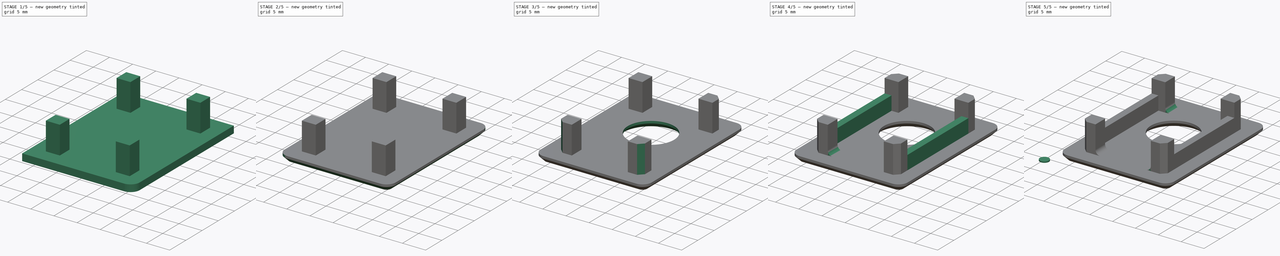
[diagram: build sequence overview — one tinted view per stage of 5, left to right]
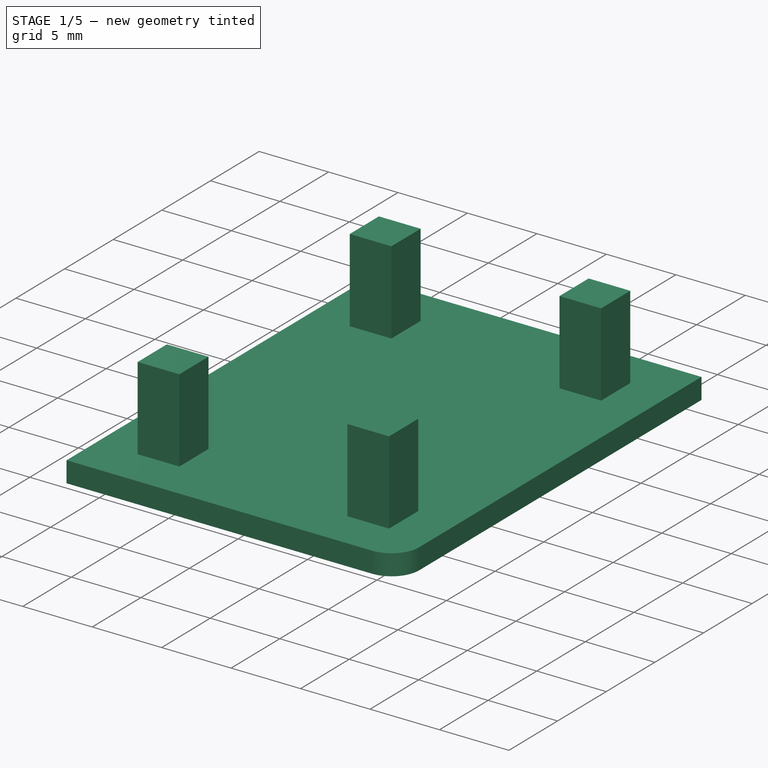
[diagram: stage 1 of 5 — iso view after this stage's code; geometry added in this stage tinted green]
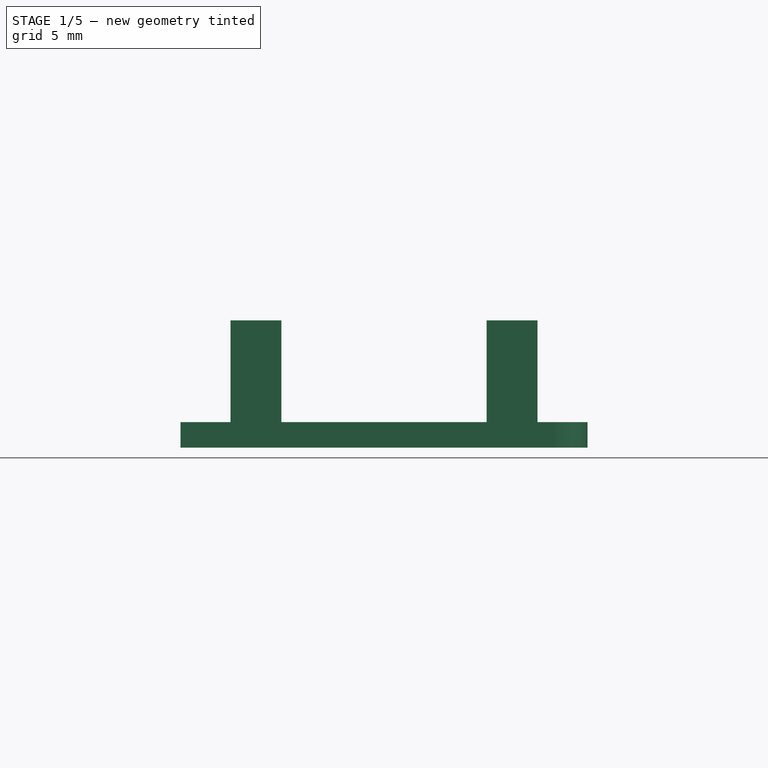
[diagram: stage 1 of 5 — front view after this stage's code; geometry added in this stage tinted green]
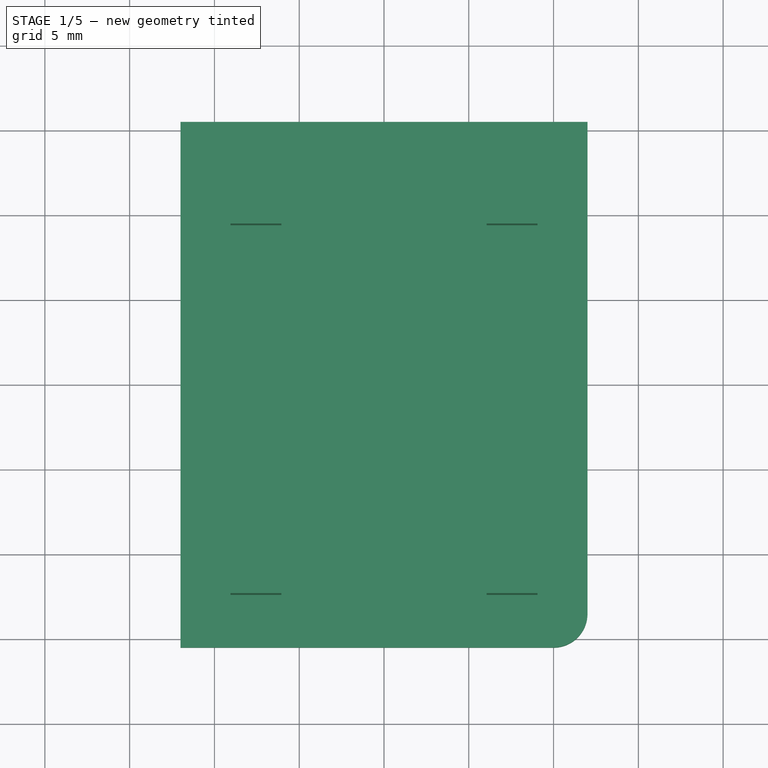
[diagram: stage 1 of 5 — top view after this stage's code; geometry added in this stage tinted green]
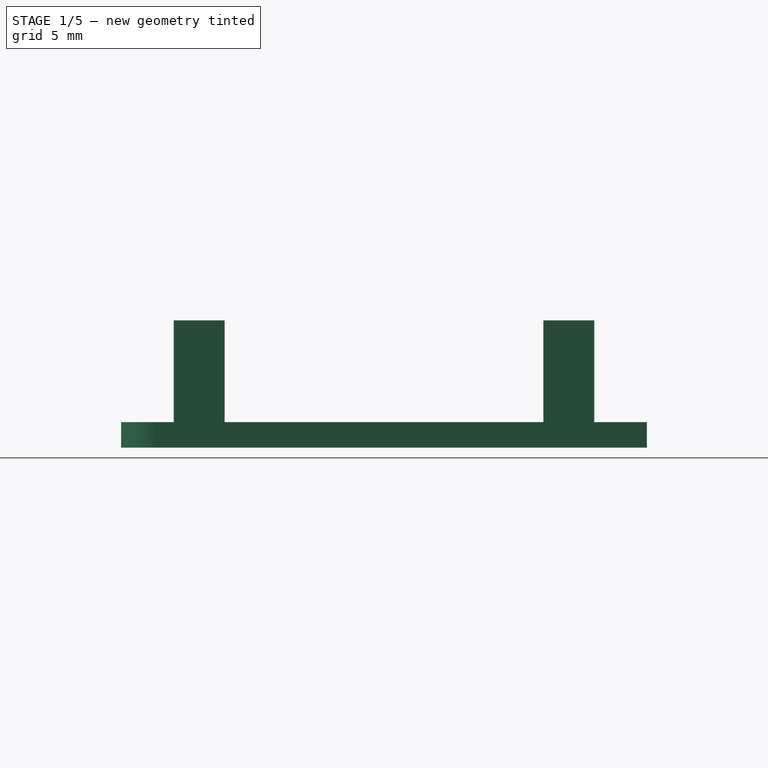
[diagram: stage 1 of 5 — right view after this stage's code; geometry added in this stage tinted green]
FCSTD DOCUMENT  (FreeCAD 0.14R2935 (Git))
Label: ttstrobe_top
License: CC-BY 3.0
LicenseURL: http://creativecommons.org/licenses/by/3.0/
objects: PartDesign::Fillet×8, PartDesign::Chamfer×6, Sketcher::SketchObject×5, PartDesign::Pad×4, PartDesign::Mirrored×3, PartDesign::MultiTransform×1, PartDesign::Pocket×1
note: 33 computed .brp shape members not serialized (recipe doc carries the construction recipe); baked Part::Feature solids carry a one-line shape summary decoded from their .brp

FEATURE [Sketcher::SketchObject] Sketch
  sketch-geometry (6):
    g0: LineSegment StartX=-12 StartY=15.5 StartZ=0 EndX=12 EndY=15.5 EndZ=0
    g1: LineSegment StartX=12 StartY=15.5 StartZ=0 EndX=12 EndY=-15.5 EndZ=0
    g2: LineSegment StartX=12 StartY=-15.5 StartZ=0 EndX=-12 EndY=-15.5 EndZ=0
    g3: LineSegment StartX=-12 StartY=-15.5 StartZ=0 EndX=-12 EndY=15.5 EndZ=0
    g4: LineSegment [constr] StartX=-12 StartY=15.5 StartZ=0 EndX=12 EndY=-15.5 EndZ=0
    g5: LineSegment [constr] StartX=12 StartY=15.5 StartZ=0 EndX=-12 EndY=-15.5 EndZ=0
  constraints (16):
    c: Coincident(g0,g1)
    c: Coincident(g1,g2)
    c: Coincident(g2,g3)
    c: Coincident(g3,g0)
    c: Horizontal(g0)
    c: Horizontal(g2)
    c: Vertical(g1)
    c: Vertical(g3)
    c: Coincident(g4,g0)
    c: Coincident(g4,g1)
    c: Coincident(g5,g0)
    c: Coincident(g5,g2)
    c: PointOnObject(g-1,g4)
    c: PointOnObject(g-1,g5)
    c: DistanceX(g0) = 24
    c: DistanceY(g1) = -31
FEATURE [PartDesign::Pad] Pad
  Length = 1.5
  Length2 = 100
  Sketch = -> Sketch
  Type = 0
FEATURE [Sketcher::SketchObject] Sketch002
  Placement = pos=(0,0,1.5) rot=(0,0,1;0rad)
  Support = -> Pad [Face6]
  sketch-geometry (4):
    g0: LineSegment StartX=-9.05 StartY=12.4 StartZ=0 EndX=-6.05 EndY=12.4 EndZ=0
    g1: LineSegment StartX=-6.05 StartY=9.4 StartZ=0 EndX=-9.05 EndY=9.4 EndZ=0
    g2: LineSegment StartX=-9.05 StartY=12.4 StartZ=0 EndX=-9.05 EndY=9.4 EndZ=0
    g3: LineSegment StartX=-6.05 StartY=12.4 StartZ=0 EndX=-6.05 EndY=9.4 EndZ=0
  constraints (12):
    c: Horizontal(g0)
    c: Horizontal(g1)
    c: Coincident(g2,g0)
    c: Coincident(g3,g0)
    c: Vertical(g2)
    c: Vertical(g3)
    c: Equal(g1,g2)
    c: Coincident(g1,g2)
    c: DistanceX(g-1,g1) = -9.05
    c: DistanceY(g-1,g0) = 12.4
    c: DistanceX(g0) = 3
    c: Coincident(g1,g3)
FEATURE [PartDesign::Pad] Pad001
  Length = 6
  Length2 = 100
  Sketch = -> Sketch002
  Type = 0
FEATURE [PartDesign::Mirrored] Mirrored
  MirrorPlane = -> Sketch002 [V_Axis]
FEATURE [PartDesign::Mirrored] Mirrored001
  MirrorPlane = -> Sketch002 [H_Axis]
FEATURE [PartDesign::MultiTransform] MultiTransform
  Originals = -> [Pad001]
  Transformations = -> [Mirrored,Mirrored001]
FEATURE [PartDesign::Fillet] Fillet
  Base = -> MultiTransform [Edge8]
  Radius = 2
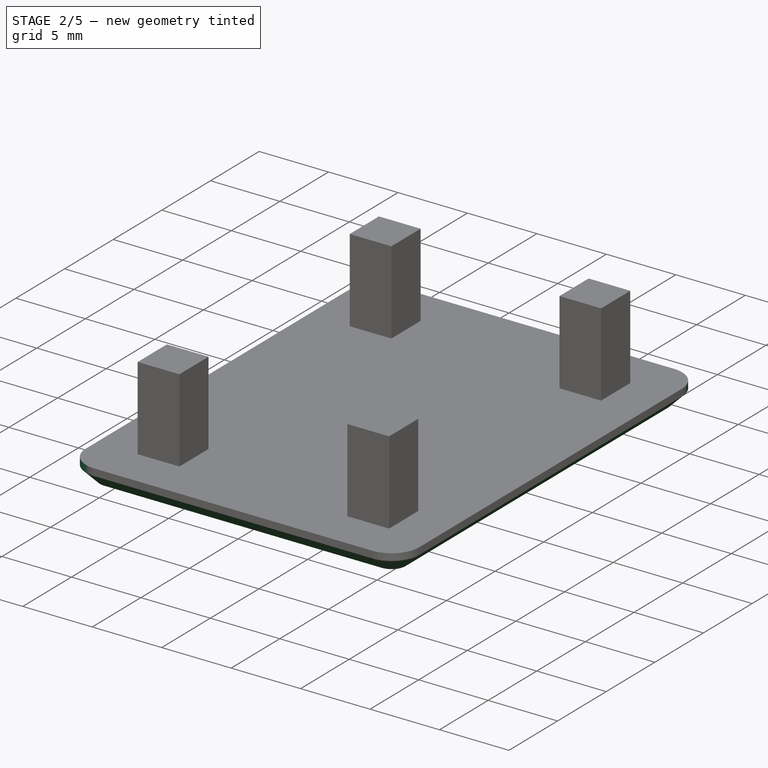
[diagram: stage 2 of 5 — iso view after this stage's code; geometry added in this stage tinted green]
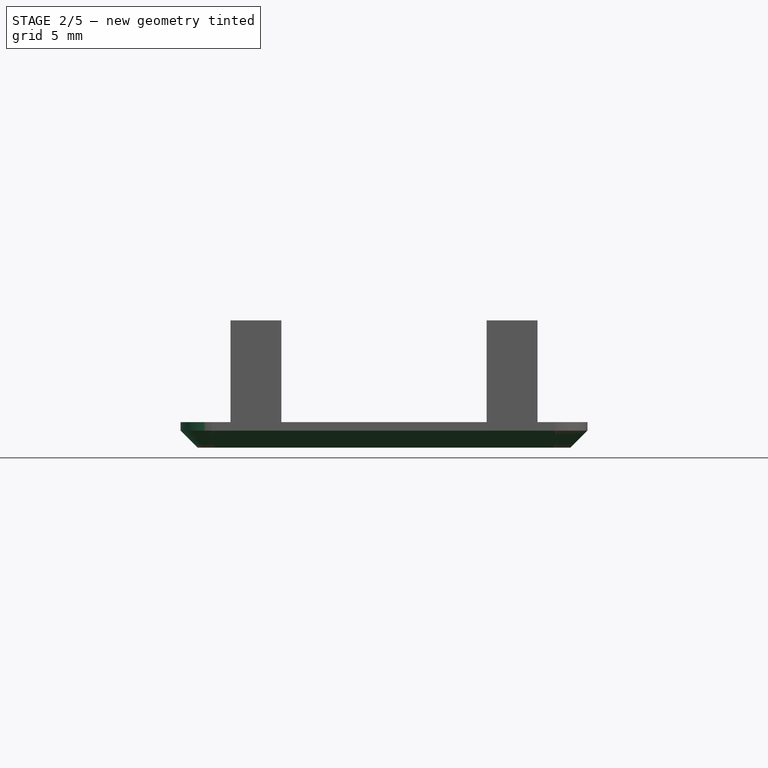
[diagram: stage 2 of 5 — front view after this stage's code; geometry added in this stage tinted green]
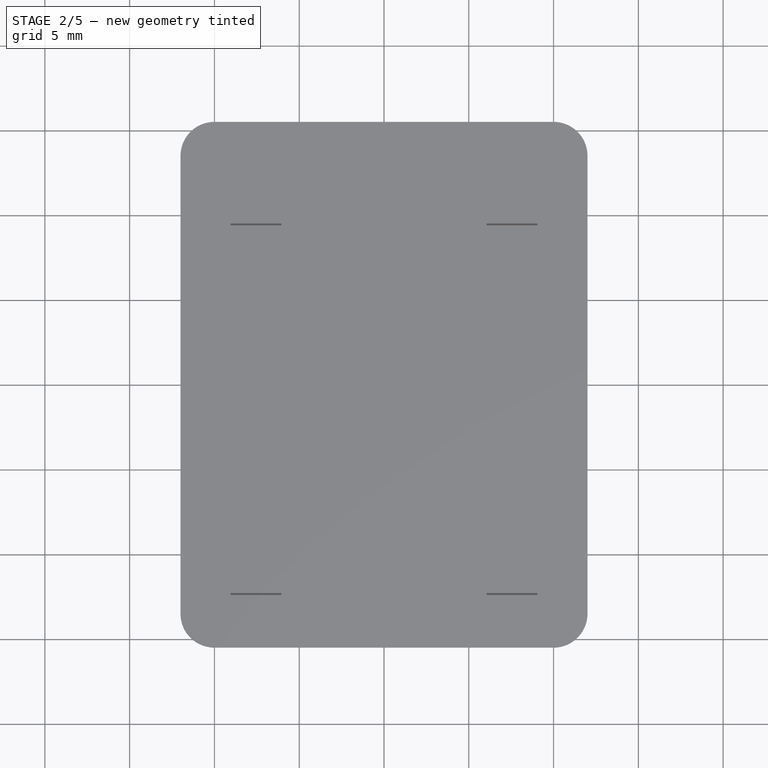
[diagram: stage 2 of 5 — top view after this stage's code; geometry added in this stage tinted green]
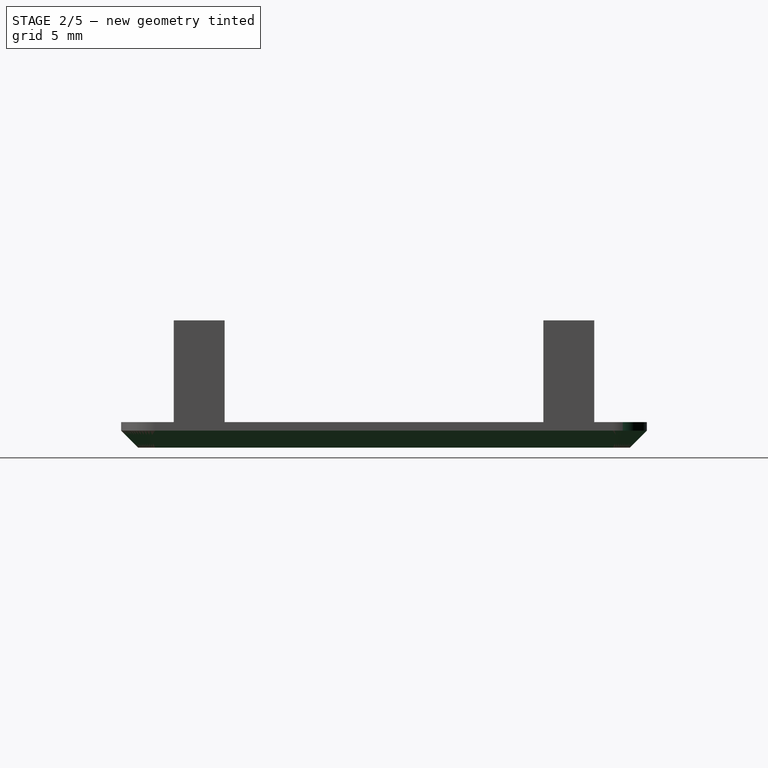
[diagram: stage 2 of 5 — right view after this stage's code; geometry added in this stage tinted green]
FEATURE [PartDesign::Fillet] Fillet001
  Base = -> Fillet [Edge31]
  Radius = 2
FEATURE [PartDesign::Fillet] Fillet002
  Base = -> Fillet001 [Edge16]
  Radius = 2
FEATURE [PartDesign::Fillet] Fillet003
  Base = -> Fillet002 [Edge15]
  Radius = 2
FEATURE [PartDesign::Chamfer] Chamfer
  Base = -> Fillet003 [Edge5]
  Size = 1
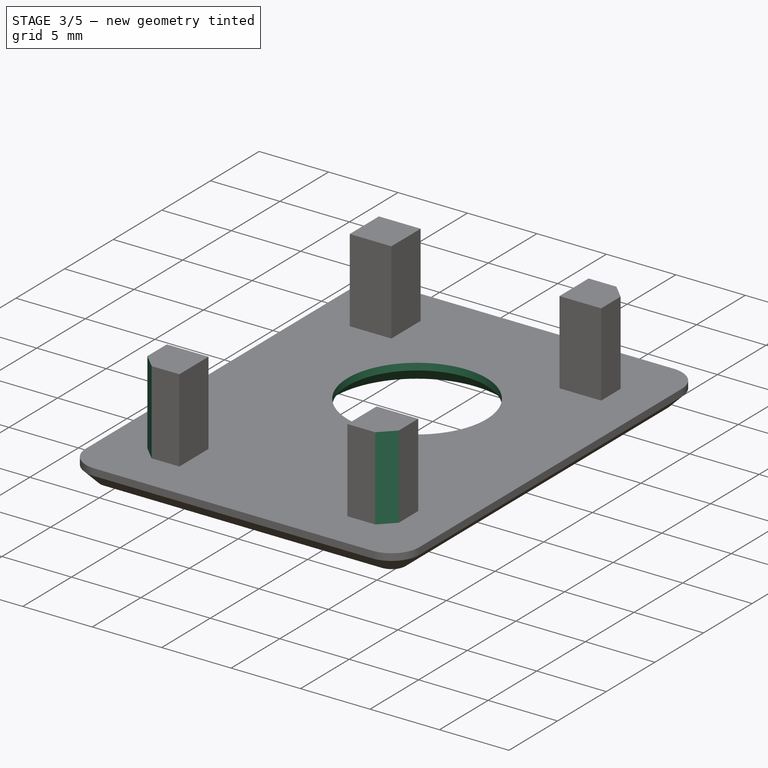
[diagram: stage 3 of 5 — iso view after this stage's code; geometry added in this stage tinted green]
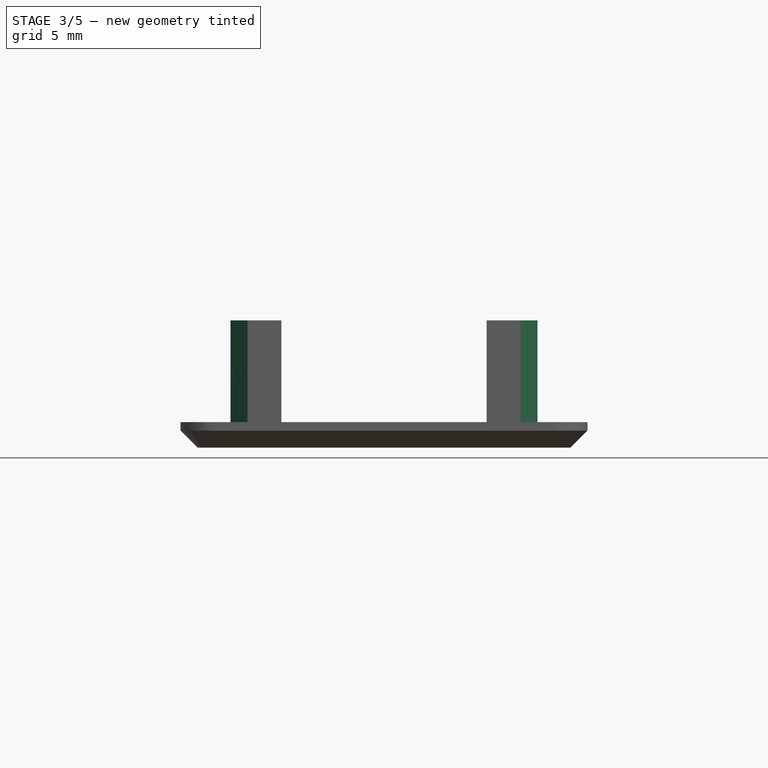
[diagram: stage 3 of 5 — front view after this stage's code; geometry added in this stage tinted green]
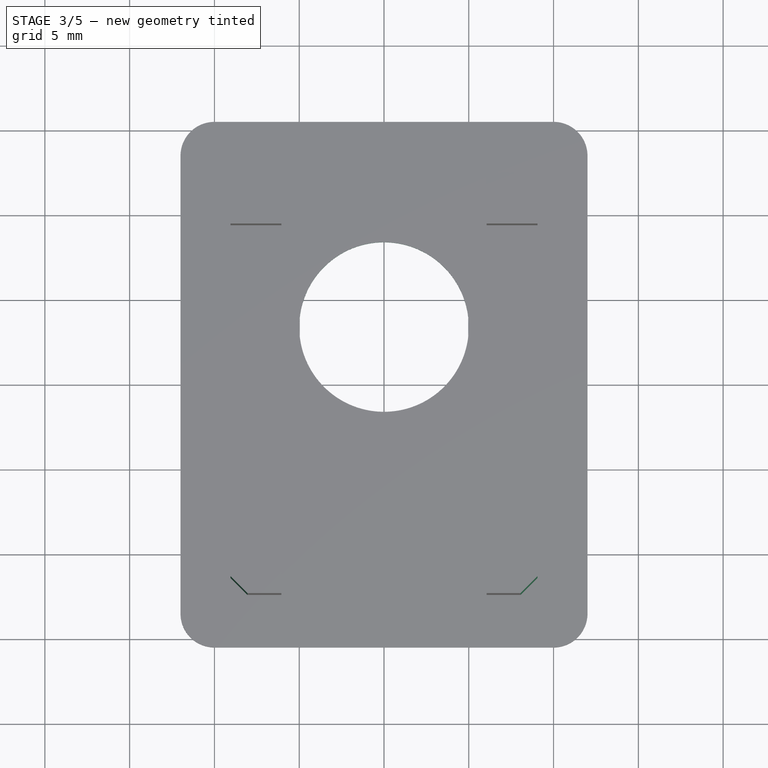
[diagram: stage 3 of 5 — top view after this stage's code; geometry added in this stage tinted green]
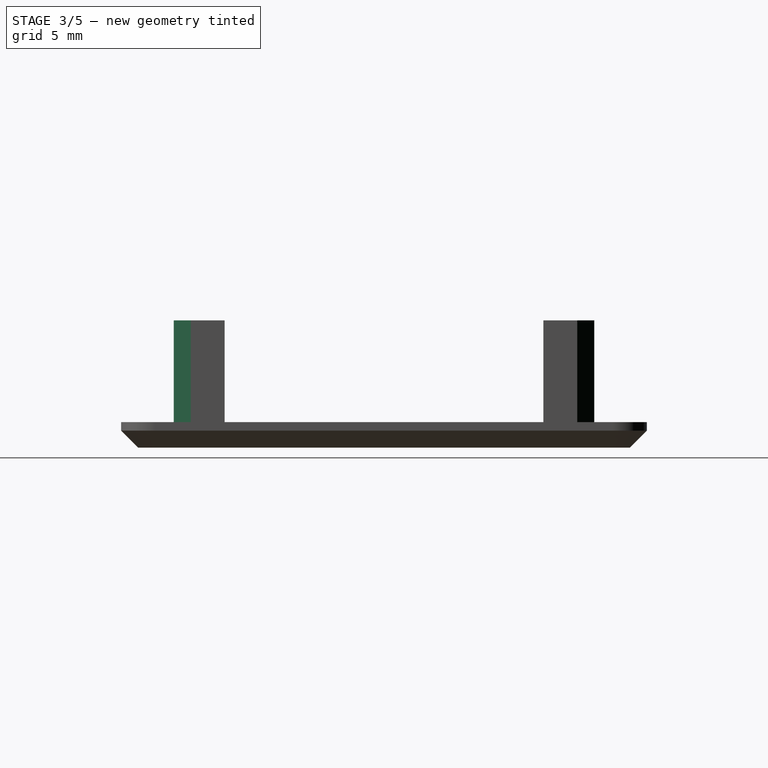
[diagram: stage 3 of 5 — right view after this stage's code; geometry added in this stage tinted green]
FEATURE [Sketcher::SketchObject] Sketch004
  ExternalGeometry = -> [Chamfer]
  Placement = pos=(0,0,1.5) rot=(0,0,1;0rad)
  Support = -> Chamfer [Face18]
  sketch-geometry (1):
    g0: Circle CenterX=0 CenterY=3.4 CenterZ=0 NormalX=0 NormalY=0 NormalZ=1 Radius=5
  constraints (3):
    c: PointOnObject(g0,g-2)
    c: Radius(g0) = 5
    c: DistanceY(g-3,g0) = -9
FEATURE [PartDesign::Pocket] Pocket
  Length = 5
  Sketch = -> Sketch004
  Type = 1
FEATURE [PartDesign::Chamfer] Chamfer001
  Base = -> Pocket [Edge9]
  Size = 1
FEATURE [PartDesign::Chamfer] Chamfer002
  Base = -> Chamfer001 [Edge78]
  Size = 1
FEATURE [PartDesign::Chamfer] Chamfer003
  Base = -> Chamfer002 [Edge66]
  Size = 1
FEATURE [PartDesign::Chamfer] Chamfer004
  Base = -> Chamfer003 [Edge72]
  Size = 1
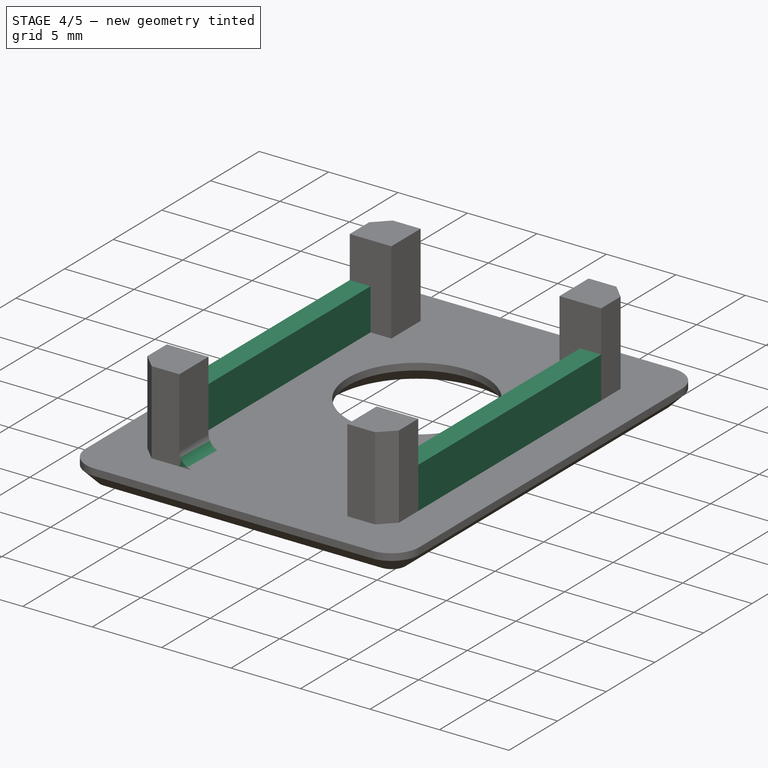
[diagram: stage 4 of 5 — iso view after this stage's code; geometry added in this stage tinted green]
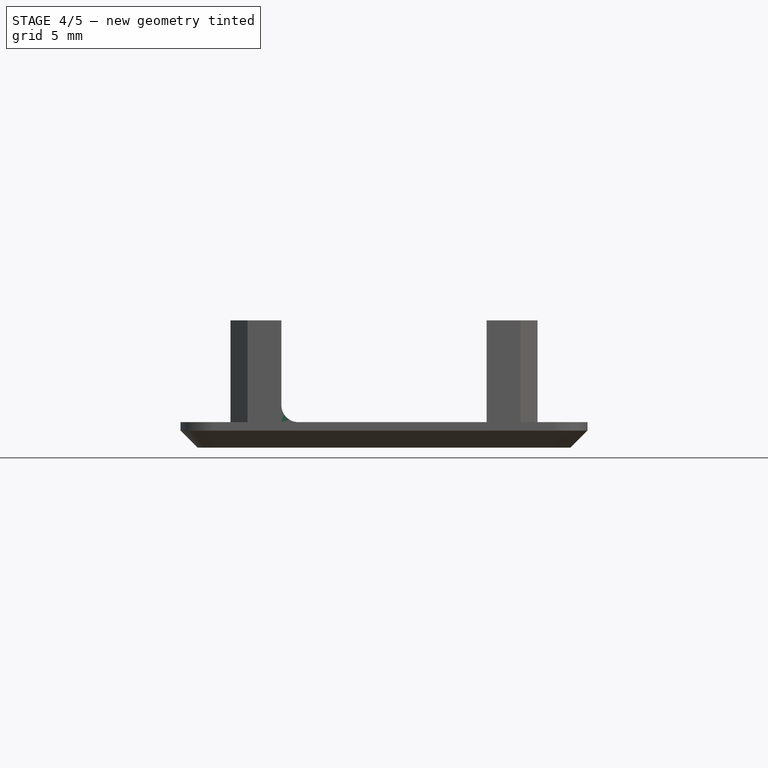
[diagram: stage 4 of 5 — front view after this stage's code; geometry added in this stage tinted green]
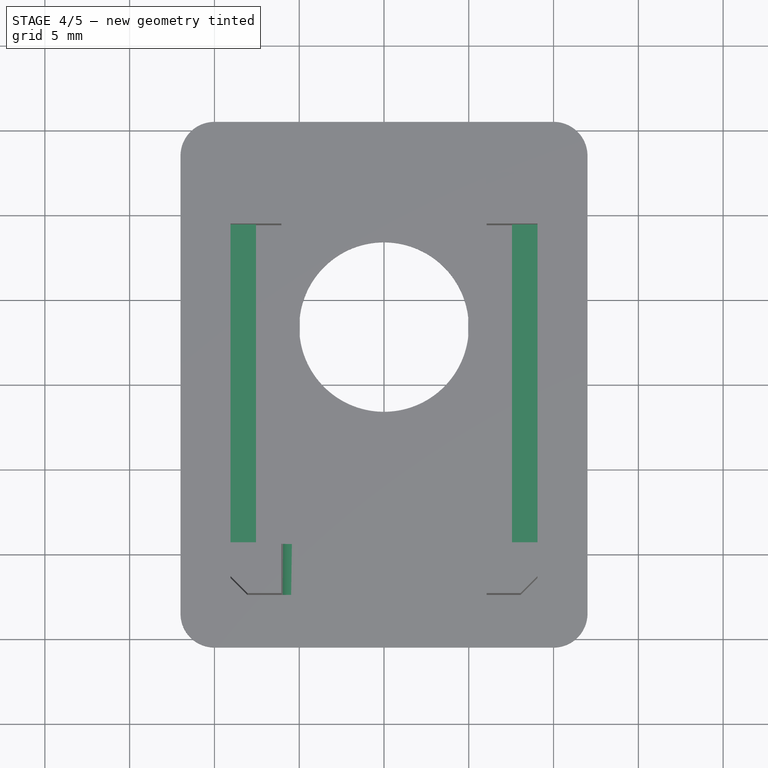
[diagram: stage 4 of 5 — top view after this stage's code; geometry added in this stage tinted green]
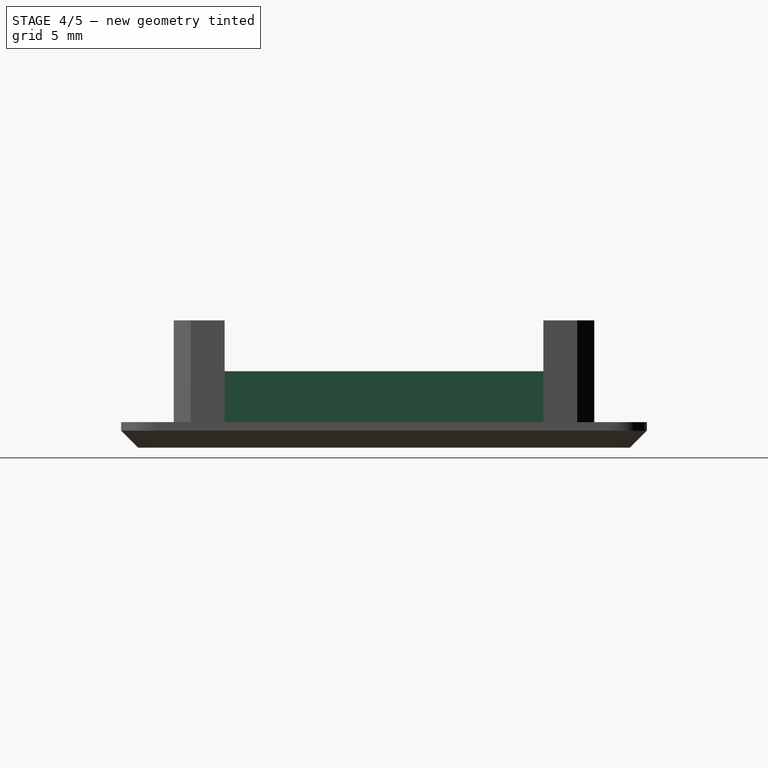
[diagram: stage 4 of 5 — right view after this stage's code; geometry added in this stage tinted green]
FEATURE [PartDesign::Chamfer] Chamfer005
  Base = -> Chamfer004 [Edge75]
  Size = 1
FEATURE [Sketcher::SketchObject] Sketch005
  ExternalGeometry = -> [Chamfer005]
  Placement = pos=(0,9.4,0) rot=(1,0,0;1.5708rad)
  Support = -> Chamfer005 [Face6]
  sketch-geometry (4):
    g0: LineSegment StartX=-9.05 StartY=1.5 StartZ=0 EndX=-7.55 EndY=1.5 EndZ=0
    g1: LineSegment StartX=-7.55 StartY=1.5 StartZ=0 EndX=-7.55 EndY=4.5 EndZ=0
    g2: LineSegment StartX=-7.55 StartY=4.5 StartZ=0 EndX=-9.05 EndY=4.5 EndZ=0
    g3: LineSegment StartX=-9.05 StartY=4.5 StartZ=0 EndX=-9.05 EndY=1.5 EndZ=0
  constraints (11):
    c: Coincident(g0,g1)
    c: Coincident(g1,g2)
    c: Coincident(g2,g3)
    c: Coincident(g3,g0)
    c: Horizontal(g0)
    c: Horizontal(g2)
    c: Vertical(g1)
    c: Vertical(g3)
    c: Coincident(g0,g-3)
    c: DistanceX(g2) = -1.5
    c: DistanceY(g1) = 3
FEATURE [PartDesign::Pad] Pad003
  Length = 10
  Length2 = 100
  Sketch = -> Sketch005
  Type = 2
FEATURE [PartDesign::Mirrored] Mirrored002
  MirrorPlane = -> Sketch005 [V_Axis]
  Originals = -> [Pad003]
FEATURE [PartDesign::Fillet] Fillet004
  Base = -> Mirrored002 [Edge28]
  Radius = 1
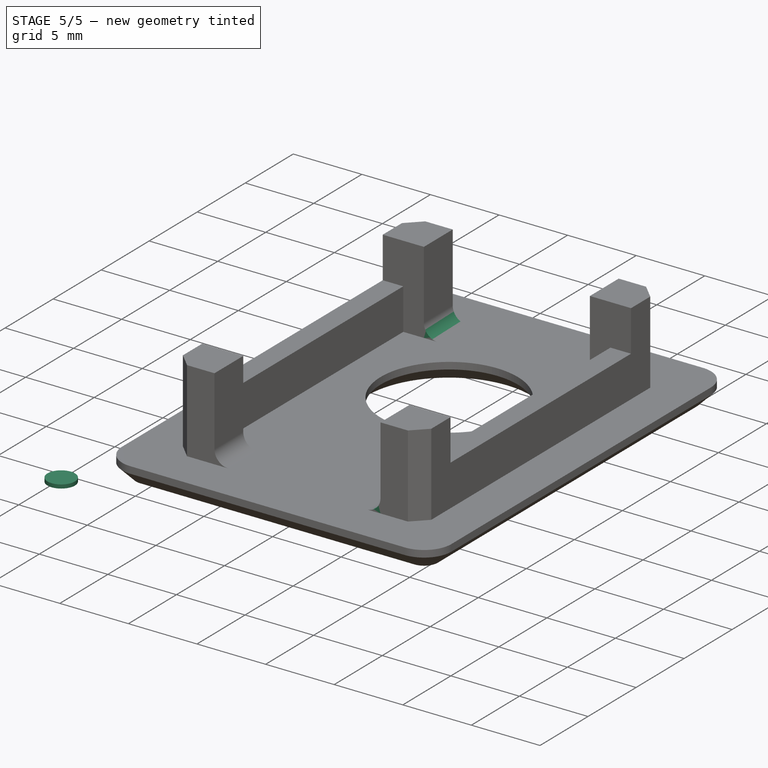
[diagram: stage 5 of 5 — iso view after this stage's code; geometry added in this stage tinted green]
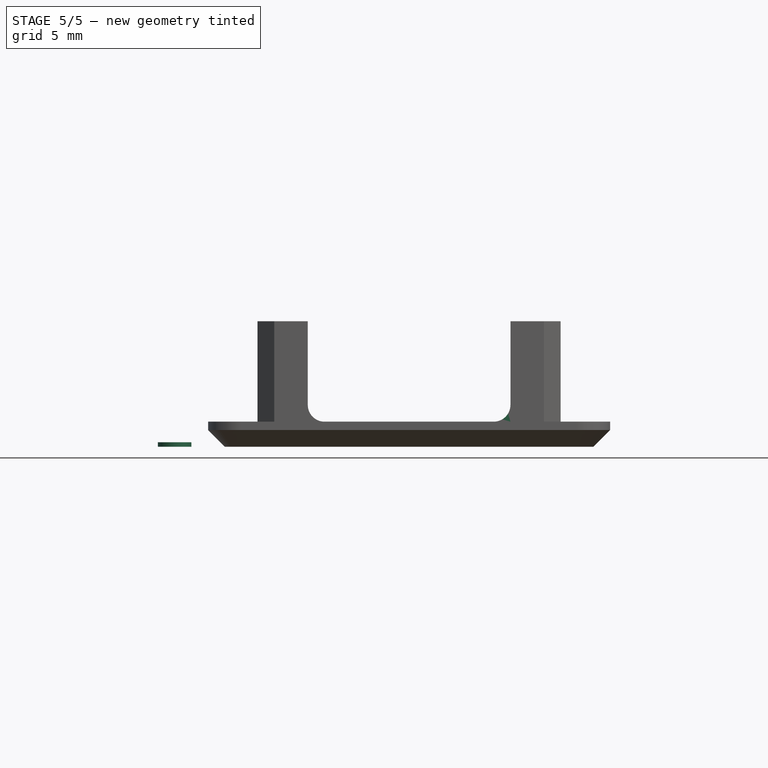
[diagram: stage 5 of 5 — front view after this stage's code; geometry added in this stage tinted green]
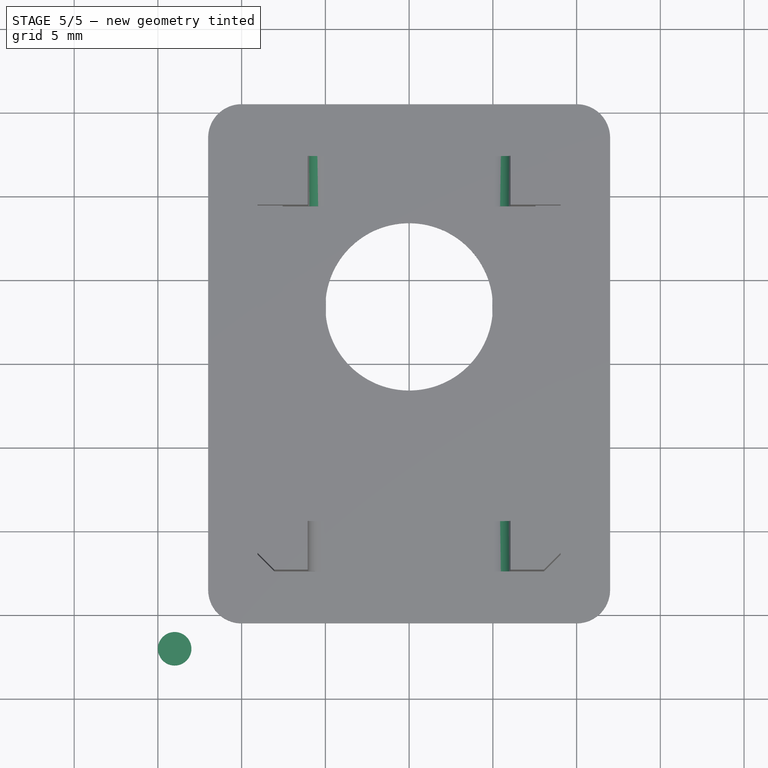
[diagram: stage 5 of 5 — top view after this stage's code; geometry added in this stage tinted green]
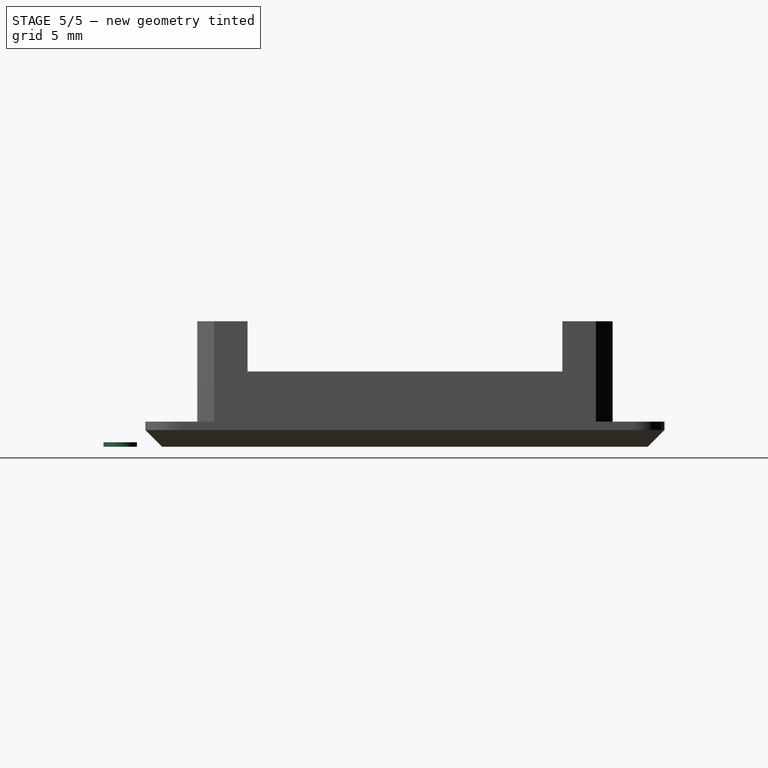
[diagram: stage 5 of 5 — right view after this stage's code; geometry added in this stage tinted green]
FEATURE [Sketcher::SketchObject] Sketch003
  sketch-geometry (1):
    g0: Circle CenterX=-14 CenterY=-17 CenterZ=0 NormalX=0 NormalY=0 NormalZ=1 Radius=1
  constraints (3):
    c: Radius(g0) = 1
    c: DistanceX(g-1,g0) = -14
    c: DistanceY(g-1,g0) = -17
FEATURE [PartDesign::Pad] Pad002
  Length = 0.27
  Length2 = 100
  Sketch = -> Sketch003
  Type = 0
FEATURE [PartDesign::Fillet] Fillet005
  Base = -> Fillet004 [Edge13]
  Radius = 1
FEATURE [PartDesign::Fillet] Fillet006
  Base = -> Fillet005 [Edge27]
  Radius = 1
FEATURE [PartDesign::Fillet] Fillet007
  Base = -> Fillet006 [Edge13]
  Radius = 1
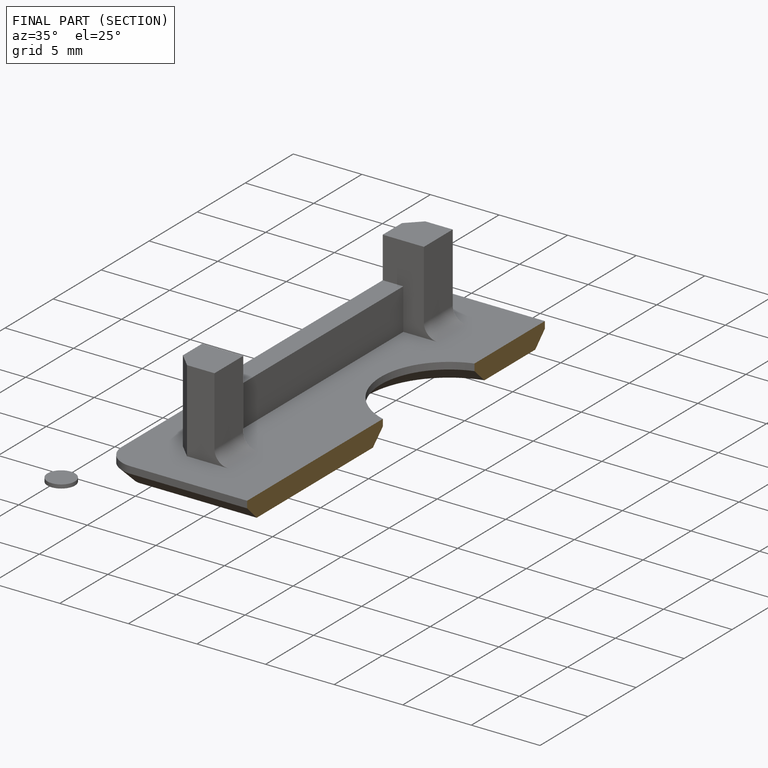
[diagram: finished part — half-section view (interior)]
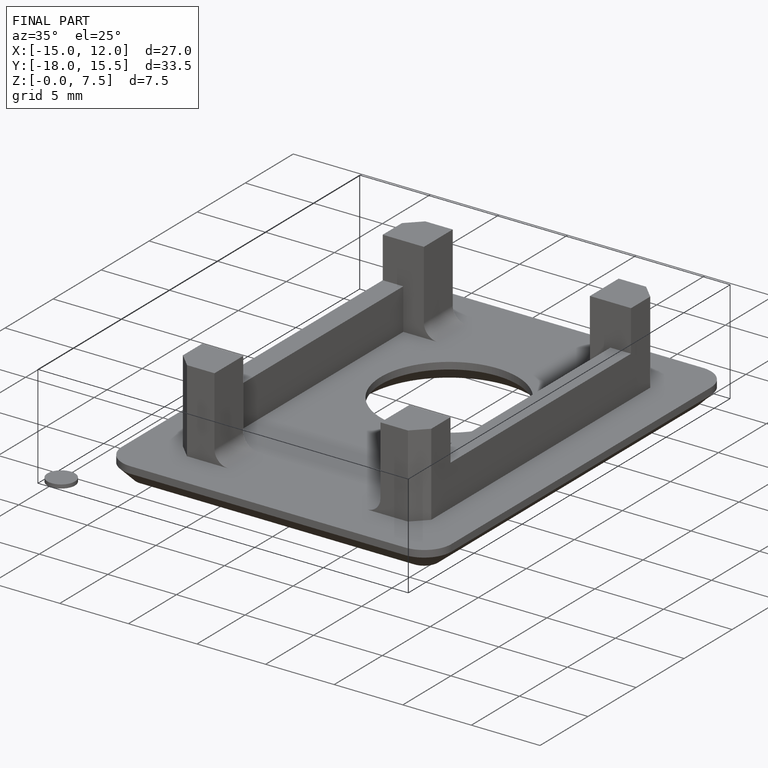
[diagram: finished part — iso view with bounding-box wireframe]
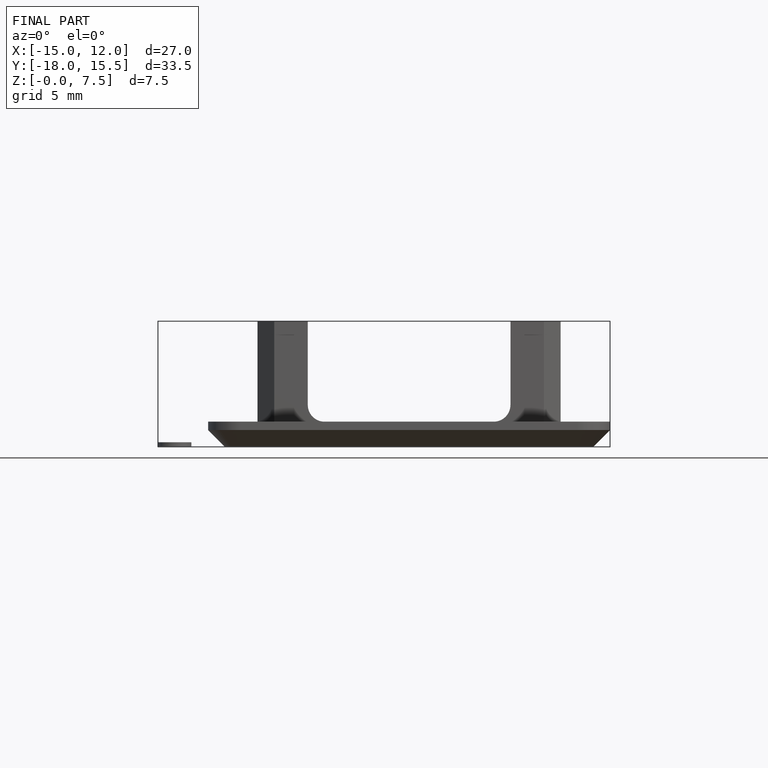
[diagram: finished part — front view with bounding-box wireframe]
